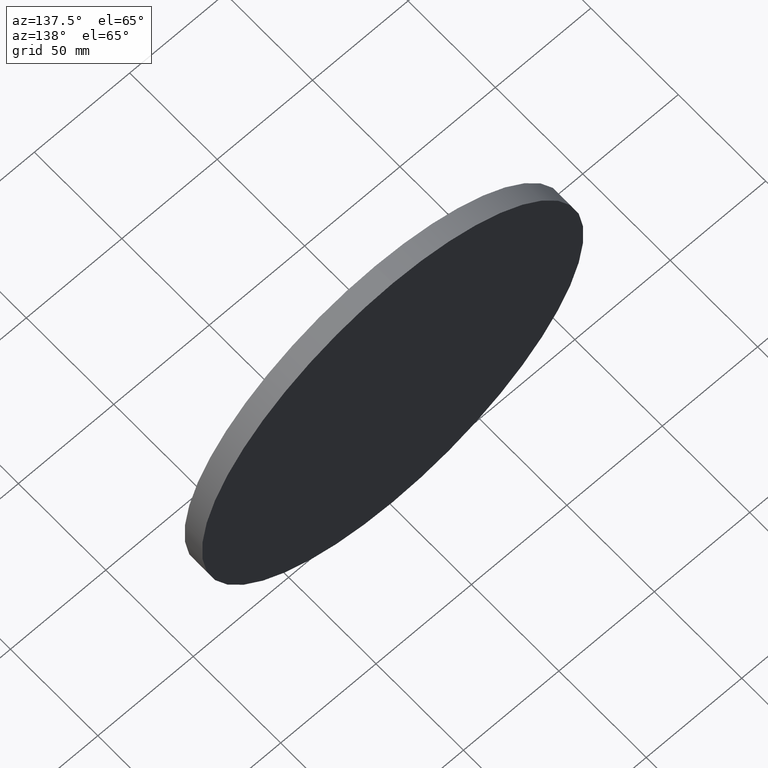
[diagram: clean part render]
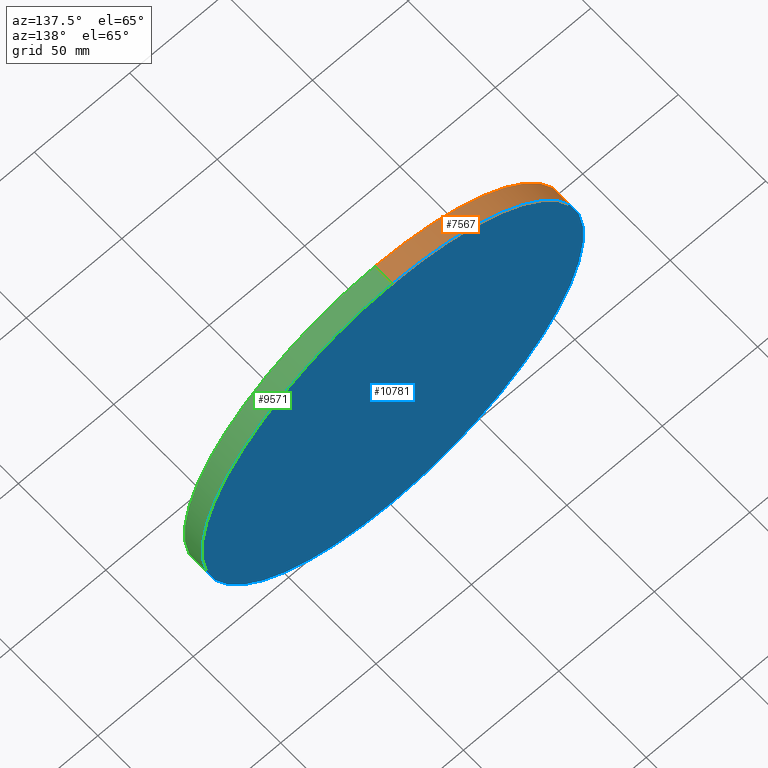
[diagram: same view with three faces highlighted in distinct colors, each labeled with its STEP entity id]
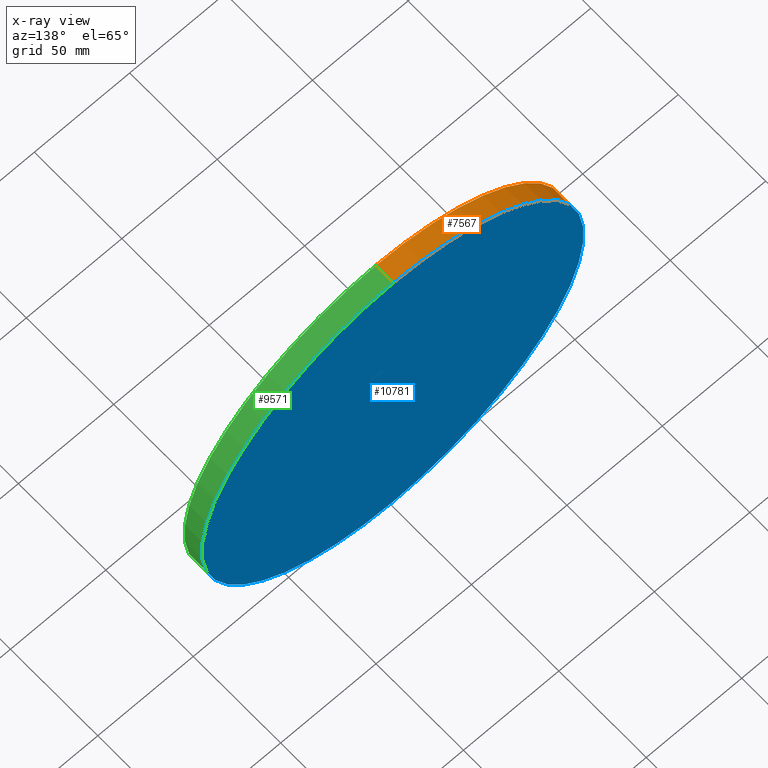
[diagram: x-ray of the same camera — body ghosted, the three highlighted faces saturated]
A machine part, auxiliary view with three faces highlighted in distinct colors.
The next image is the same camera in x-ray (body ghosted, the three faces saturated) — at least one of them is partly hidden behind the body in this view.
Their STEP definitions:

[orange] entity #7567 — the highlighted cylindrical surface (partial cylindrical patch) has radius 100 mm, axis along (-0, -1, -0).
#587 = DIRECTION ( 'NONE',  ( 0.000000000000000000, 0.000000000000000000, 1.000000000000000000 ) ) ;
#699 = EDGE_CURVE ( 'NONE', #8849, #3615, #4402, .T. ) ;
#1081 = DIRECTION ( 'NONE',  ( -0.000000000000000000, -1.000000000000000000, -0.000000000000000000 ) ) ;
#1644 = CYLINDRICAL_SURFACE ( 'NONE', #4107, 100.0000000000000000 ) ;
#2036 = FACE_OUTER_BOUND ( 'NONE', #12922, .T. ) ;
#2999 = LINE ( 'NONE', #9478, #6817 ) ;
#3085 = CARTESIAN_POINT ( 'NONE',  ( 0.000000000000000000, 5.000000000000000000, 0.000000000000000000 ) ) ;
#3325 = CARTESIAN_POINT ( 'NONE',  ( 0.000000000000000000, -5.000000000000000000, -100.0000000000000000 ) ) ;
#3615 = VERTEX_POINT ( 'NONE', #4281 ) ;
#4107 = AXIS2_PLACEMENT_3D ( 'NONE', #7229, #1081, #7072 ) ;
#4281 = CARTESIAN_POINT ( 'NONE',  ( 1.224646799147353217E-14, 5.000000000000000000, 100.0000000000000000 ) ) ;
#4402 = CIRCLE ( 'NONE', #11895, 100.0000000000000000 ) ;
#4624 = EDGE_CURVE ( 'NONE', #10568, #7470, #13588, .T. ) ;
#4746 = VECTOR ( 'NONE', #15225, 1000.000000000000000 ) ;
#5284 = DIRECTION ( 'NONE',  ( 0.000000000000000000, 1.000000000000000000, 0.000000000000000000 ) ) ;
#5862 = EDGE_CURVE ( 'NONE', #8849, #10568, #11855, .T. ) ;
#6817 = VECTOR ( 'NONE', #14454, 1000.000000000000000 ) ;
#7072 = DIRECTION ( 'NONE',  ( 0.000000000000000000, 0.000000000000000000, -1.000000000000000000 ) ) ;
#7229 = CARTESIAN_POINT ( 'NONE',  ( 0.000000000000000000, 5.000000000000000000, 0.000000000000000000 ) ) ;
#7470 = VERTEX_POINT ( 'NONE', #11760 ) ;
#7567 = ADVANCED_FACE ( 'NONE', ( #2036 ), #1644, .T. ) ;
#7810 = CARTESIAN_POINT ( 'NONE',  ( 0.000000000000000000, -5.000000000000000000, 0.000000000000000000 ) ) ;
#8849 = VERTEX_POINT ( 'NONE', #11325 ) ;
#9101 = DIRECTION ( 'NONE',  ( 0.000000000000000000, 1.000000000000000000, 0.000000000000000000 ) ) ;
#9464 = ORIENTED_EDGE ( 'NONE', *, *, #4624, .T. ) ;
#9478 = CARTESIAN_POINT ( 'NONE',  ( 1.224646799147353217E-14, 5.000000000000000000, 100.0000000000000000 ) ) ;
#10568 = VERTEX_POINT ( 'NONE', #3325 ) ;
#10692 = ORIENTED_EDGE ( 'NONE', *, *, #13779, .F. ) ;
#11325 = CARTESIAN_POINT ( 'NONE',  ( 0.000000000000000000, 5.000000000000000000, -100.0000000000000000 ) ) ;
#11760 = CARTESIAN_POINT ( 'NONE',  ( 1.224646799147353217E-14, -5.000000000000000000, 100.0000000000000000 ) ) ;
#11855 = LINE ( 'NONE', #15025, #4746 ) ;
#11895 = AXIS2_PLACEMENT_3D ( 'NONE', #3085, #5284, #14117 ) ;
#12922 = EDGE_LOOP ( 'NONE', ( #10692, #13035, #14963, #9464 ) ) ;
#13035 = ORIENTED_EDGE ( 'NONE', *, *, #699, .F. ) ;
#13588 = CIRCLE ( 'NONE', #15341, 100.0000000000000000 ) ;
#13779 = EDGE_CURVE ( 'NONE', #3615, #7470, #2999, .T. ) ;
#14117 = DIRECTION ( 'NONE',  ( 0.000000000000000000, 0.000000000000000000, 1.000000000000000000 ) ) ;
#14454 = DIRECTION ( 'NONE',  ( -0.000000000000000000, -1.000000000000000000, -0.000000000000000000 ) ) ;
#14963 = ORIENTED_EDGE ( 'NONE', *, *, #5862, .T. ) ;
#15025 = CARTESIAN_POINT ( 'NONE',  ( 0.000000000000000000, 5.000000000000000000, -100.0000000000000000 ) ) ;
#15225 = DIRECTION ( 'NONE',  ( -0.000000000000000000, -1.000000000000000000, -0.000000000000000000 ) ) ;
#15341 = AXIS2_PLACEMENT_3D ( 'NONE', #7810, #9101, #587 ) ;

[blue] entity #10781 — the highlighted planar face has unit normal (0, 1, 0).
#699 = EDGE_CURVE ( 'NONE', #8849, #3615, #4402, .T. ) ;
#3085 = CARTESIAN_POINT ( 'NONE',  ( 0.000000000000000000, 5.000000000000000000, 0.000000000000000000 ) ) ;
#3615 = VERTEX_POINT ( 'NONE', #4281 ) ;
#3973 = DIRECTION ( 'NONE',  ( 0.000000000000000000, 1.000000000000000000, 0.000000000000000000 ) ) ;
#4151 = PLANE ( 'NONE',  #14985 ) ;
#4281 = CARTESIAN_POINT ( 'NONE',  ( 1.224646799147353217E-14, 5.000000000000000000, 100.0000000000000000 ) ) ;
#4402 = CIRCLE ( 'NONE', #11895, 100.0000000000000000 ) ;
#4733 = CIRCLE ( 'NONE', #8037, 100.0000000000000000 ) ;
#5144 = FACE_OUTER_BOUND ( 'NONE', #14812, .T. ) ;
#5284 = DIRECTION ( 'NONE',  ( 0.000000000000000000, 1.000000000000000000, 0.000000000000000000 ) ) ;
#6210 = ORIENTED_EDGE ( 'NONE', *, *, #12256, .T. ) ;
#6332 = CARTESIAN_POINT ( 'NONE',  ( 0.000000000000000000, 5.000000000000000000, 0.000000000000000000 ) ) ;
#7698 = DIRECTION ( 'NONE',  ( 0.000000000000000000, 1.000000000000000000, 0.000000000000000000 ) ) ;
#8037 = AXIS2_PLACEMENT_3D ( 'NONE', #6332, #3973, #12550 ) ;
#8849 = VERTEX_POINT ( 'NONE', #11325 ) ;
#10781 = ADVANCED_FACE ( 'NONE', ( #5144 ), #4151, .T. ) ;
#11325 = CARTESIAN_POINT ( 'NONE',  ( 0.000000000000000000, 5.000000000000000000, -100.0000000000000000 ) ) ;
#11895 = AXIS2_PLACEMENT_3D ( 'NONE', #3085, #5284, #14117 ) ;
#12256 = EDGE_CURVE ( 'NONE', #3615, #8849, #4733, .T. ) ;
#12550 = DIRECTION ( 'NONE',  ( 0.000000000000000000, 0.000000000000000000, 1.000000000000000000 ) ) ;
#13496 = ORIENTED_EDGE ( 'NONE', *, *, #699, .T. ) ;
#13850 = CARTESIAN_POINT ( 'NONE',  ( 0.000000000000000000, 5.000000000000000000, 0.000000000000000000 ) ) ;
#14117 = DIRECTION ( 'NONE',  ( 0.000000000000000000, 0.000000000000000000, 1.000000000000000000 ) ) ;
#14812 = EDGE_LOOP ( 'NONE', ( #13496, #6210 ) ) ;
#14985 = AXIS2_PLACEMENT_3D ( 'NONE', #13850, #7698, #15221 ) ;
#15221 = DIRECTION ( 'NONE',  ( 0.000000000000000000, -0.000000000000000000, 1.000000000000000000 ) ) ;

[green] entity #9571 — the highlighted cylindrical surface (partial cylindrical patch) has radius 100 mm, axis along (-0, -1, -0).
#804 = AXIS2_PLACEMENT_3D ( 'NONE', #6958, #11904, #15499 ) ;
#1833 = DIRECTION ( 'NONE',  ( -0.000000000000000000, -1.000000000000000000, -0.000000000000000000 ) ) ;
#2391 = ORIENTED_EDGE ( 'NONE', *, *, #5862, .F. ) ;
#2646 = EDGE_CURVE ( 'NONE', #7470, #10568, #15278, .T. ) ;
#2999 = LINE ( 'NONE', #9478, #6817 ) ;
#3325 = CARTESIAN_POINT ( 'NONE',  ( 0.000000000000000000, -5.000000000000000000, -100.0000000000000000 ) ) ;
#3615 = VERTEX_POINT ( 'NONE', #4281 ) ;
#3973 = DIRECTION ( 'NONE',  ( 0.000000000000000000, 1.000000000000000000, 0.000000000000000000 ) ) ;
#4281 = CARTESIAN_POINT ( 'NONE',  ( 1.224646799147353217E-14, 5.000000000000000000, 100.0000000000000000 ) ) ;
#4733 = CIRCLE ( 'NONE', #8037, 100.0000000000000000 ) ;
#4746 = VECTOR ( 'NONE', #15225, 1000.000000000000000 ) ;
#5250 = FACE_OUTER_BOUND ( 'NONE', #15659, .T. ) ;
#5633 = CYLINDRICAL_SURFACE ( 'NONE', #8127, 100.0000000000000000 ) ;
#5862 = EDGE_CURVE ( 'NONE', #8849, #10568, #11855, .T. ) ;
#6332 = CARTESIAN_POINT ( 'NONE',  ( 0.000000000000000000, 5.000000000000000000, 0.000000000000000000 ) ) ;
#6817 = VECTOR ( 'NONE', #14454, 1000.000000000000000 ) ;
#6958 = CARTESIAN_POINT ( 'NONE',  ( 0.000000000000000000, -5.000000000000000000, 0.000000000000000000 ) ) ;
#7115 = ORIENTED_EDGE ( 'NONE', *, *, #13779, .T. ) ;
#7124 = ORIENTED_EDGE ( 'NONE', *, *, #2646, .T. ) ;
#7470 = VERTEX_POINT ( 'NONE', #11760 ) ;
#8037 = AXIS2_PLACEMENT_3D ( 'NONE', #6332, #3973, #12550 ) ;
#8127 = AXIS2_PLACEMENT_3D ( 'NONE', #10130, #1833, #10394 ) ;
#8849 = VERTEX_POINT ( 'NONE', #11325 ) ;
#9478 = CARTESIAN_POINT ( 'NONE',  ( 1.224646799147353217E-14, 5.000000000000000000, 100.0000000000000000 ) ) ;
#9571 = ADVANCED_FACE ( 'NONE', ( #5250 ), #5633, .T. ) ;
#10130 = CARTESIAN_POINT ( 'NONE',  ( 0.000000000000000000, 5.000000000000000000, 0.000000000000000000 ) ) ;
#10394 = DIRECTION ( 'NONE',  ( 0.000000000000000000, 0.000000000000000000, -1.000000000000000000 ) ) ;
#10568 = VERTEX_POINT ( 'NONE', #3325 ) ;
#10990 = ORIENTED_EDGE ( 'NONE', *, *, #12256, .F. ) ;
#11325 = CARTESIAN_POINT ( 'NONE',  ( 0.000000000000000000, 5.000000000000000000, -100.0000000000000000 ) ) ;
#11760 = CARTESIAN_POINT ( 'NONE',  ( 1.224646799147353217E-14, -5.000000000000000000, 100.0000000000000000 ) ) ;
#11855 = LINE ( 'NONE', #15025, #4746 ) ;
#11904 = DIRECTION ( 'NONE',  ( 0.000000000000000000, 1.000000000000000000, 0.000000000000000000 ) ) ;
#12256 = EDGE_CURVE ( 'NONE', #3615, #8849, #4733, .T. ) ;
#12550 = DIRECTION ( 'NONE',  ( 0.000000000000000000, 0.000000000000000000, 1.000000000000000000 ) ) ;
#13779 = EDGE_CURVE ( 'NONE', #3615, #7470, #2999, .T. ) ;
#14454 = DIRECTION ( 'NONE',  ( -0.000000000000000000, -1.000000000000000000, -0.000000000000000000 ) ) ;
#15025 = CARTESIAN_POINT ( 'NONE',  ( 0.000000000000000000, 5.000000000000000000, -100.0000000000000000 ) ) ;
#15225 = DIRECTION ( 'NONE',  ( -0.000000000000000000, -1.000000000000000000, -0.000000000000000000 ) ) ;
#15278 = CIRCLE ( 'NONE', #804, 100.0000000000000000 ) ;
#15499 = DIRECTION ( 'NONE',  ( 0.000000000000000000, 0.000000000000000000, 1.000000000000000000 ) ) ;
#15659 = EDGE_LOOP ( 'NONE', ( #10990, #7115, #7124, #2391 ) ) ;